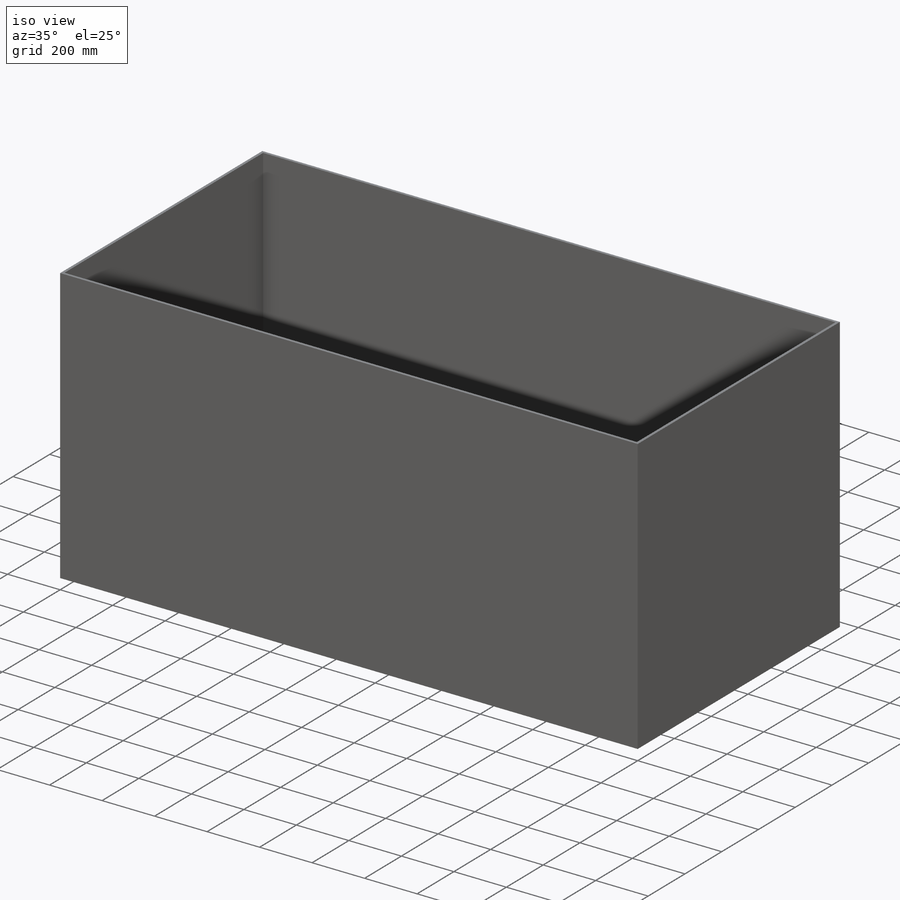
[diagram: iso view]
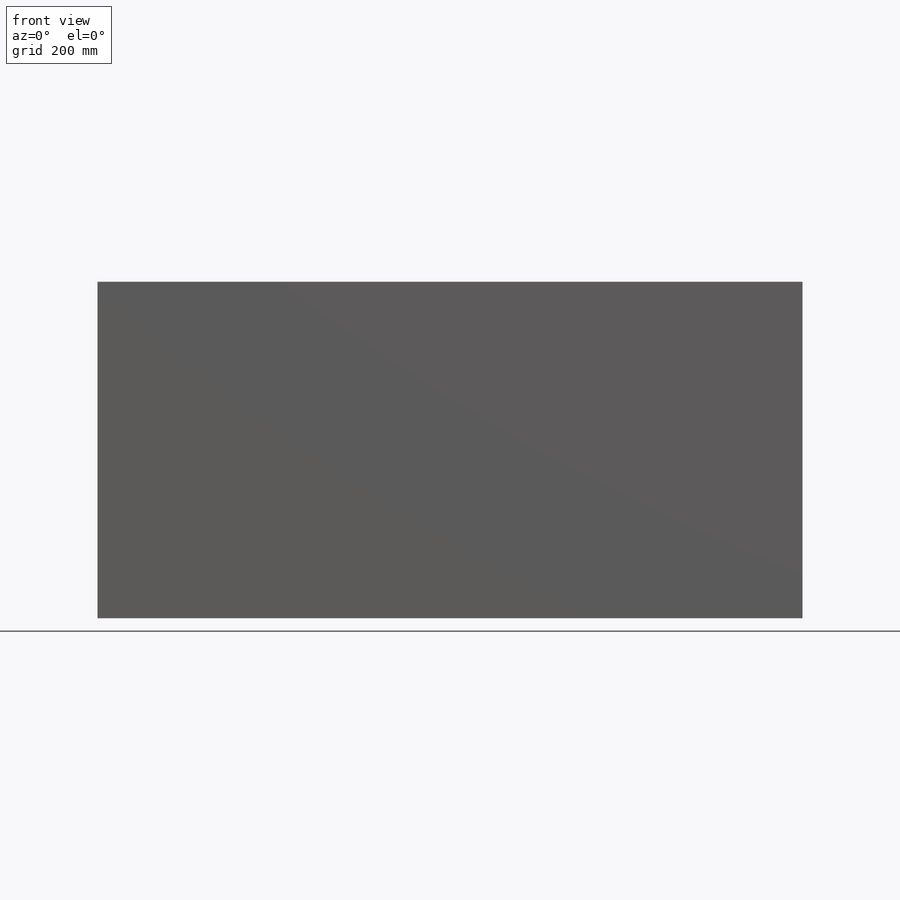
[diagram: front view]
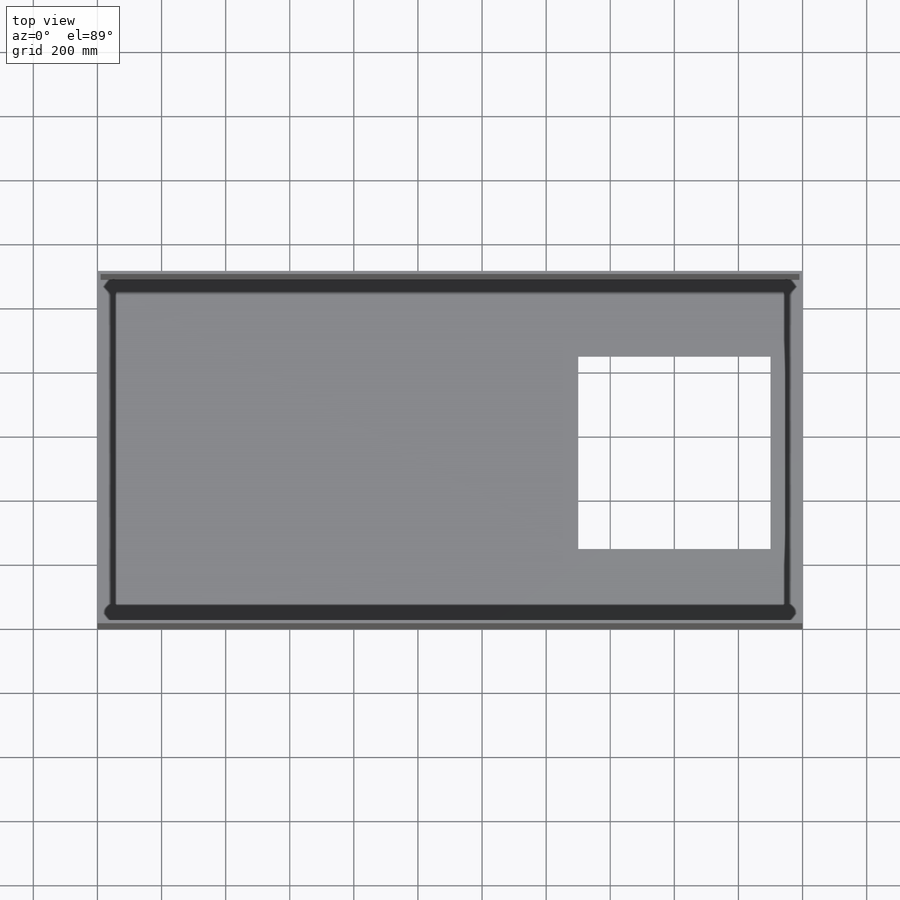
[diagram: top view]
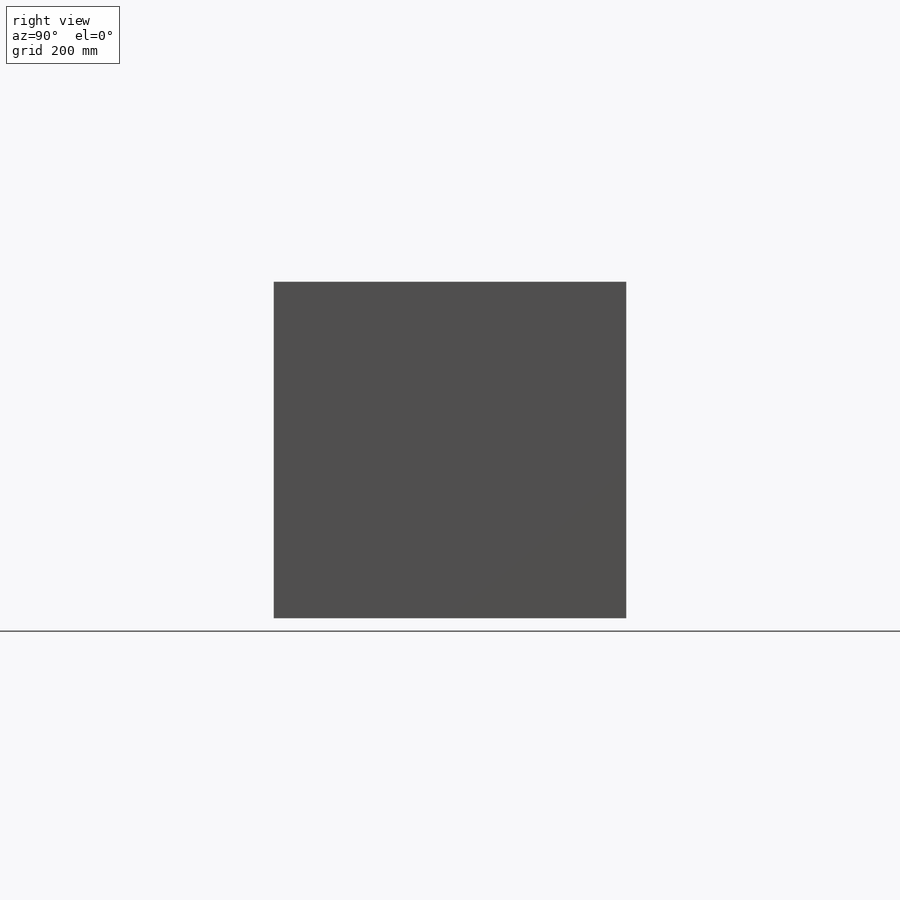
[diagram: right view]
SOLIDWORKS PART (.sldprt)
format: sldprt  version: not decoded by parser v0  size: 144,896 bytes
history: native  units: mm
features: sketch x2, material x1, extrude x1, shell x1, cut_extrude x1 (+13 scaffold rows collapsed)
feature tree (19):
  scaffold x13  (default folders/planes/origin — collapsed)
  material  "Material <not specified>"
  sketch  "Sketch1"  dims[D1=2200.0mm D2=1100.0mm]
  extrude  "Extrude1"  Depth=1050mm
  shell  "Shell1"  Thickness=10mm
  sketch  "Sketch2"  dims[D1=600.0mm D2=600.0mm D3=250.0mm D4=100.0mm]
  cut_extrude  "Cut-Extrude1"  Depth=400mm
decode coverage: 5 of 5 modeling features carry decoded parameters
note: suppression state not decoded; provenance and decode notes live in map.json
